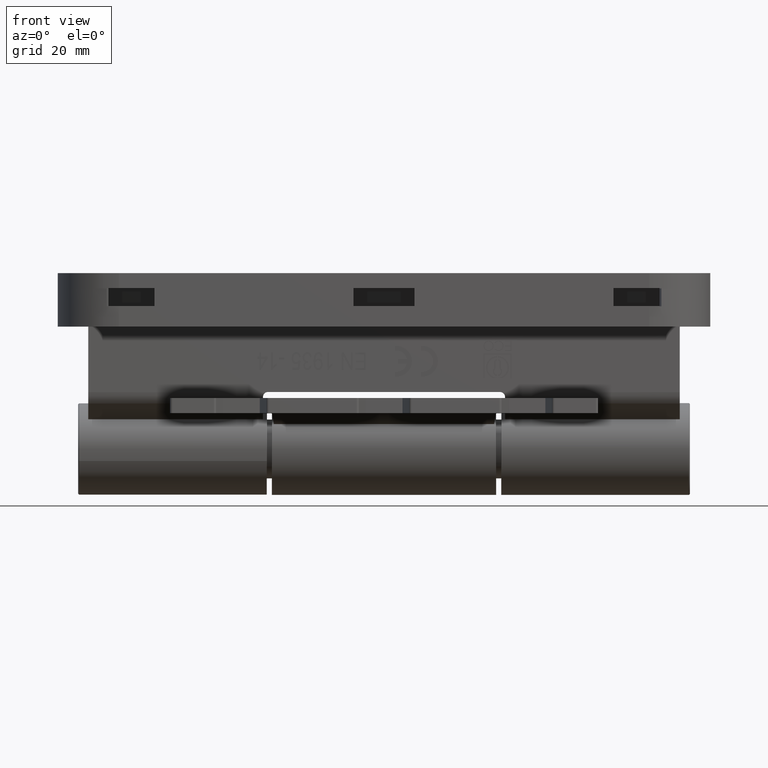
[diagram: clean part render]
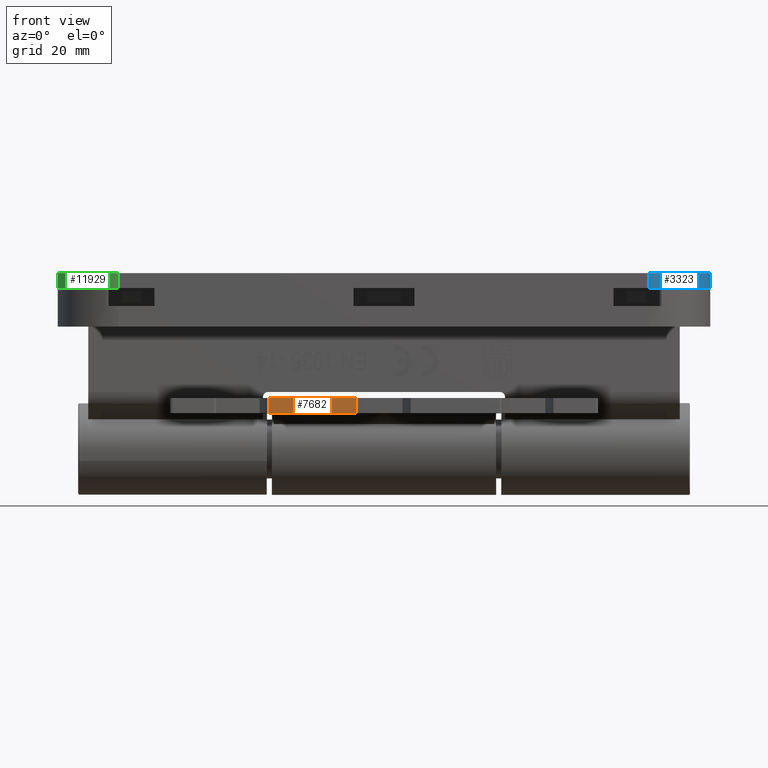
[diagram: same view with three faces highlighted in distinct colors, each labeled with its STEP entity id]
A machine part, front view with three faces highlighted in distinct colors.
Their STEP definitions:

[orange] entity #7682 — the highlighted planar face has unit normal (0, -1, -0).
#16 = DIRECTION ( 'NONE',  ( 3.330669073875506106E-16, -1.645520264221267495E-30, -1.000000000000000000 ) ) ;
#1540 = ORIENTED_EDGE ( 'NONE', *, *, #3871, .F. ) ;
#3190 = CARTESIAN_POINT ( 'NONE',  ( -39.00000000000003553, -7.000000000000002665, 22.60961179679783228 ) ) ;
#3391 = VERTEX_POINT ( 'NONE', #3190 ) ;
#3670 = DIRECTION ( 'NONE',  ( 3.330669073875506106E-16, -1.645520264221267495E-30, -1.000000000000000000 ) ) ;
#3871 = EDGE_CURVE ( 'NONE', #9392, #5845, #14278, .T. ) ;
#4099 = ORIENTED_EDGE ( 'NONE', *, *, #7705, .T. ) ;
#4435 = AXIS2_PLACEMENT_3D ( 'NONE', #15571, #18292, #15270 ) ;
#4569 = ORIENTED_EDGE ( 'NONE', *, *, #12675, .T. ) ;
#5054 = CARTESIAN_POINT ( 'NONE',  ( -39.00000000000003553, -7.000000000000002665, 22.60961179679782518 ) ) ;
#5325 = CARTESIAN_POINT ( 'NONE',  ( -39.00000000000002132, -10.00000000000000178, 5.390388203202242323 ) ) ;
#5502 = LINE ( 'NONE', #11449, #12382 ) ;
#5845 = VERTEX_POINT ( 'NONE', #5325 ) ;
#6744 = VERTEX_POINT ( 'NONE', #11660 ) ;
#7679 = PLANE ( 'NONE',  #4435 ) ;
#7682 = ADVANCED_FACE ( 'NONE', ( #19801 ), #7679, .T. ) ;
#7705 = EDGE_CURVE ( 'NONE', #3391, #6744, #13836, .T. ) ;
#7806 = VECTOR ( 'NONE', #13929, 1000.000000000000000 ) ;
#9392 = VERTEX_POINT ( 'NONE', #11766 ) ;
#10506 = CARTESIAN_POINT ( 'NONE',  ( -39.00000000000003553, -7.000000000000002665, 42.00000000000002132 ) ) ;
#10797 = LINE ( 'NONE', #5054, #7806 ) ;
#11449 = CARTESIAN_POINT ( 'NONE',  ( -39.00000000000002132, -10.00000000000000178, 5.390388203202230777 ) ) ;
#11660 = CARTESIAN_POINT ( 'NONE',  ( -39.00000000000001421, -6.999999999999999112, 5.390388203202242323 ) ) ;
#11766 = CARTESIAN_POINT ( 'NONE',  ( -39.00000000000004263, -10.00000000000000888, 22.60961179679783228 ) ) ;
#12382 = VECTOR ( 'NONE', #14500, 1000.000000000000000 ) ;
#12675 = EDGE_CURVE ( 'NONE', #9392, #3391, #10797, .T. ) ;
#12792 = VECTOR ( 'NONE', #3670, 1000.000000000000000 ) ;
#13836 = LINE ( 'NONE', #10506, #17033 ) ;
#13929 = DIRECTION ( 'NONE',  ( -6.902532920683849794E-31, 1.000000000000000000, 1.645520264221267145E-30 ) ) ;
#14278 = LINE ( 'NONE', #14386, #12792 ) ;
#14386 = CARTESIAN_POINT ( 'NONE',  ( -39.00000000000004263, -10.00000000000000178, 42.00000000000002132 ) ) ;
#14500 = DIRECTION ( 'NONE',  ( 6.902532920683849794E-31, -1.000000000000000000, -1.645520264221267145E-30 ) ) ;
#15270 = DIRECTION ( 'NONE',  ( -3.330669073875505120E-16, 1.645520264221267145E-30, 1.000000000000000000 ) ) ;
#15445 = EDGE_CURVE ( 'NONE', #6744, #5845, #5502, .T. ) ;
#15571 = CARTESIAN_POINT ( 'NONE',  ( -39.00000000000004263, -10.00000000000000178, 42.00000000000002132 ) ) ;
#16289 = ORIENTED_EDGE ( 'NONE', *, *, #15445, .T. ) ;
#17033 = VECTOR ( 'NONE', #16, 1000.000000000000000 ) ;
#18292 = DIRECTION ( 'NONE',  ( -1.000000000000000000, 6.902532920683841036E-31, -3.330669073875505120E-16 ) ) ;
#18847 = EDGE_LOOP ( 'NONE', ( #1540, #4569, #4099, #16289 ) ) ;
#19801 = FACE_OUTER_BOUND ( 'NONE', #18847, .T. ) ;

[blue] entity #3323 — the highlighted cylindrical surface (partial cylindrical patch) has radius 12 mm, axis along (-0, 0, -1).
#376 = ORIENTED_EDGE ( 'NONE', *, *, #5422, .T. ) ;
#1089 = FACE_OUTER_BOUND ( 'NONE', #19901, .T. ) ;
#1185 = CARTESIAN_POINT ( 'NONE',  ( -12.00000000000007994, -64.00000000000005684, -2.760696280273783110 ) ) ;
#1805 = CARTESIAN_POINT ( 'NONE',  ( -12.00000000000006573, -52.00000000000004263, 6.938893903907228378E-15 ) ) ;
#2114 = DIRECTION ( 'NONE',  ( 1.000000000000000000, 1.156482317317871133E-15, 0.000000000000000000 ) ) ;
#2326 = LINE ( 'NONE', #1185, #8448 ) ;
#2428 = DIRECTION ( 'NONE',  ( -5.916456789157588541E-31, -1.019244706040663633E-30, -1.000000000000000000 ) ) ;
#3323 = ADVANCED_FACE ( 'NONE', ( #1089 ), #11868, .T. ) ;
#3626 = DIRECTION ( 'NONE',  ( -5.916456789157588541E-31, -1.019244706040663633E-30, -1.000000000000000000 ) ) ;
#3954 = ORIENTED_EDGE ( 'NONE', *, *, #4174, .T. ) ;
#4174 = EDGE_CURVE ( 'NONE', #8835, #6987, #5077, .T. ) ;
#4971 = CARTESIAN_POINT ( 'NONE',  ( -6.938893903907228378E-14, -52.00000000000002132, -2.760696280273783110 ) ) ;
#5064 = AXIS2_PLACEMENT_3D ( 'NONE', #10466, #8952, #7247 ) ;
#5077 = CIRCLE ( 'NONE', #5413, 12.00000000000000355 ) ;
#5407 = CARTESIAN_POINT ( 'NONE',  ( -4.163336342344337027E-14, -52.00000000000002132, 0.000000000000000000 ) ) ;
#5413 = AXIS2_PLACEMENT_3D ( 'NONE', #1805, #6667, #11386 ) ;
#5422 = EDGE_CURVE ( 'NONE', #6987, #12331, #18799, .T. ) ;
#6667 = DIRECTION ( 'NONE',  ( 1.224646799147359370E-16, 1.168804124119822489E-30, 1.000000000000000000 ) ) ;
#6987 = VERTEX_POINT ( 'NONE', #5407 ) ;
#7247 = DIRECTION ( 'NONE',  ( 1.000000000000000000, 1.156482317317871133E-15, 0.000000000000000000 ) ) ;
#7681 = CARTESIAN_POINT ( 'NONE',  ( -12.00000000000009415, -64.00000000000005684, 6.938893903907228378E-15 ) ) ;
#7938 = VECTOR ( 'NONE', #10814, 1000.000000000000000 ) ;
#8285 = ORIENTED_EDGE ( 'NONE', *, *, #19352, .T. ) ;
#8448 = VECTOR ( 'NONE', #2428, 1000.000000000000000 ) ;
#8835 = VERTEX_POINT ( 'NONE', #7681 ) ;
#8952 = DIRECTION ( 'NONE',  ( 5.916456789157588541E-31, 1.019244706040663633E-30, 1.000000000000000000 ) ) ;
#9848 = VERTEX_POINT ( 'NONE', #19807 ) ;
#10306 = EDGE_CURVE ( 'NONE', #9848, #8835, #2326, .T. ) ;
#10466 = CARTESIAN_POINT ( 'NONE',  ( -12.00000000000006217, -52.00000000000004263, -2.760696280273783110 ) ) ;
#10814 = DIRECTION ( 'NONE',  ( 5.916456789157588541E-31, 1.019244706040663633E-30, 1.000000000000000000 ) ) ;
#11386 = DIRECTION ( 'NONE',  ( -1.000000000000000000, -1.156482317317871133E-15, 1.224646799147347537E-16 ) ) ;
#11868 = CYLINDRICAL_SURFACE ( 'NONE', #5064, 12.00000000000000355 ) ;
#12331 = VERTEX_POINT ( 'NONE', #14161 ) ;
#12605 = CARTESIAN_POINT ( 'NONE',  ( -12.00000000000007638, -52.00000000000004263, 3.000000000000002665 ) ) ;
#13903 = CIRCLE ( 'NONE', #17462, 12.00000000000000355 ) ;
#14161 = CARTESIAN_POINT ( 'NONE',  ( -6.938893903907228378E-14, -52.00000000000002132, 3.000000000000002665 ) ) ;
#16189 = ORIENTED_EDGE ( 'NONE', *, *, #10306, .T. ) ;
#17462 = AXIS2_PLACEMENT_3D ( 'NONE', #12605, #3626, #2114 ) ;
#18799 = LINE ( 'NONE', #4971, #7938 ) ;
#19352 = EDGE_CURVE ( 'NONE', #12331, #9848, #13903, .T. ) ;
#19807 = CARTESIAN_POINT ( 'NONE',  ( -12.00000000000009059, -64.00000000000005684, 3.000000000000002665 ) ) ;
#19901 = EDGE_LOOP ( 'NONE', ( #3954, #376, #8285, #16189 ) ) ;

[green] entity #11929 — the highlighted cylindrical surface (partial cylindrical patch) has radius 12 mm, axis along (-0, 0, -1).
#404 = LINE ( 'NONE', #705, #12947 ) ;
#610 = DIRECTION ( 'NONE',  ( 5.916456789157588541E-31, 1.019244706040663633E-30, 1.000000000000000000 ) ) ;
#705 = CARTESIAN_POINT ( 'NONE',  ( 4.857225732735059864E-14, 51.99999999999999289, -2.760696280273783110 ) ) ;
#930 = CARTESIAN_POINT ( 'NONE',  ( -11.99999999999992717, 63.99999999999994316, 3.000000000000002665 ) ) ;
#1203 = DIRECTION ( 'NONE',  ( -1.000000000000000000, -1.156482317317871133E-15, 1.224646799147347537E-16 ) ) ;
#2416 = VERTEX_POINT ( 'NONE', #7195 ) ;
#2517 = CIRCLE ( 'NONE', #11844, 12.00000000000000355 ) ;
#4587 = CARTESIAN_POINT ( 'NONE',  ( 4.163336342344337027E-14, 51.99999999999999289, 3.000000000000002665 ) ) ;
#4630 = AXIS2_PLACEMENT_3D ( 'NONE', #8666, #7547, #10179 ) ;
#5219 = ORIENTED_EDGE ( 'NONE', *, *, #19372, .F. ) ;
#6142 = DIRECTION ( 'NONE',  ( -1.224646799147359370E-16, -1.168804124119822489E-30, -1.000000000000000000 ) ) ;
#7195 = CARTESIAN_POINT ( 'NONE',  ( -11.99999999999992006, 63.99999999999994316, 6.938893903907228378E-15 ) ) ;
#7536 = VERTEX_POINT ( 'NONE', #930 ) ;
#7547 = DIRECTION ( 'NONE',  ( 5.916456789157588541E-31, 1.019244706040663633E-30, 1.000000000000000000 ) ) ;
#8089 = EDGE_CURVE ( 'NONE', #2416, #12742, #2517, .T. ) ;
#8666 = CARTESIAN_POINT ( 'NONE',  ( -11.99999999999993783, 51.99999999999997158, -2.760696280273783110 ) ) ;
#8858 = CARTESIAN_POINT ( 'NONE',  ( -11.99999999999995204, 51.99999999999997158, 3.000000000000002665 ) ) ;
#9916 = EDGE_CURVE ( 'NONE', #2416, #7536, #19613, .T. ) ;
#10179 = DIRECTION ( 'NONE',  ( 1.000000000000000000, 1.156482317317871133E-15, 0.000000000000000000 ) ) ;
#10276 = FACE_OUTER_BOUND ( 'NONE', #16861, .T. ) ;
#10308 = EDGE_CURVE ( 'NONE', #10955, #7536, #14258, .T. ) ;
#10955 = VERTEX_POINT ( 'NONE', #4587 ) ;
#11195 = CARTESIAN_POINT ( 'NONE',  ( 4.163336342344337027E-14, 51.99999999999999289, 0.000000000000000000 ) ) ;
#11819 = DIRECTION ( 'NONE',  ( 5.916456789157588541E-31, 1.019244706040663633E-30, 1.000000000000000000 ) ) ;
#11844 = AXIS2_PLACEMENT_3D ( 'NONE', #16959, #6142, #1203 ) ;
#11929 = ADVANCED_FACE ( 'NONE', ( #10276 ), #19478, .T. ) ;
#12612 = VECTOR ( 'NONE', #11819, 1000.000000000000000 ) ;
#12742 = VERTEX_POINT ( 'NONE', #11195 ) ;
#12947 = VECTOR ( 'NONE', #610, 1000.000000000000000 ) ;
#13074 = ORIENTED_EDGE ( 'NONE', *, *, #10308, .F. ) ;
#13268 = AXIS2_PLACEMENT_3D ( 'NONE', #8858, #14662, #14361 ) ;
#14258 = CIRCLE ( 'NONE', #13268, 12.00000000000000355 ) ;
#14361 = DIRECTION ( 'NONE',  ( 1.000000000000000000, 1.156482317317871133E-15, 0.000000000000000000 ) ) ;
#14662 = DIRECTION ( 'NONE',  ( 5.916456789157588541E-31, 1.019244706040663633E-30, 1.000000000000000000 ) ) ;
#16160 = ORIENTED_EDGE ( 'NONE', *, *, #9916, .T. ) ;
#16785 = CARTESIAN_POINT ( 'NONE',  ( -11.99999999999991651, 63.99999999999994316, -2.760696280273783110 ) ) ;
#16861 = EDGE_LOOP ( 'NONE', ( #16160, #13074, #5219, #17003 ) ) ;
#16959 = CARTESIAN_POINT ( 'NONE',  ( -11.99999999999994138, 51.99999999999997158, 6.938893903907228378E-15 ) ) ;
#17003 = ORIENTED_EDGE ( 'NONE', *, *, #8089, .F. ) ;
#19372 = EDGE_CURVE ( 'NONE', #12742, #10955, #404, .T. ) ;
#19478 = CYLINDRICAL_SURFACE ( 'NONE', #4630, 12.00000000000000355 ) ;
#19613 = LINE ( 'NONE', #16785, #12612 ) ;